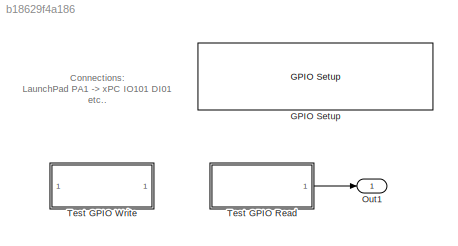
MODEL slx_b18629f4a186
KIND model
BLOCK [Reference] GPIO Setup  REF=stellaris_lib/GPIO/GPIO Setup
  GPIO_PORTX_BASE = GPIO_PORTA_BASE
  PinsOutput_0 = Input
  PinsOutput_1 = Input
  PinsOutput_2 = Output
  PinsOutput_3 = Output
  PinsOutput_4 = Output
  PinsOutput_5 = Input
  PinsOutput_6 = Input
  PinsOutput_7 = Input
  Ports = []
  SourceBlock = stellaris_lib/GPIO/GPIO Setup
  SourceType = GPIO Setup
BLOCK [Outport] Out1
  IconDisplay = Port number
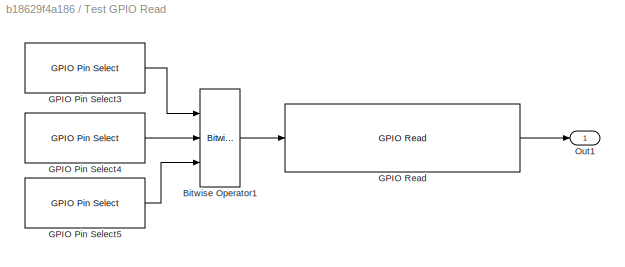
BLOCK [SubSystem] Test GPIO Read
  AttributesFormatString = Priority: %<Priority>
  FunctionWithSeparateData = off
  MaskHideContents = off
  MinAlgLoopOccurrences = off
  Opaque = off
  Ports = [0, 1]
  Priority = 2
  PropExecContextOutsideSubsystem = off
  RTWSystemCode = Auto
  RequestExecContextInheritance = off
  TreatAsAtomicUnit = on
BLOCK [Reference] Test GPIO Read/Bitwise Operator1  REF=simulink/Logic and Bit
Operations/Bitwise
Operator
  BitMask = bin2dec('11011001')
  BitMaskRealWorld = Stored Integer
  NumInputPorts = 3
  Ports = [3, 1]
  SourceBlock = simulink/Logic and Bit\nOperations/Bitwise\nOperator
  SourceType = Bitwise Operator
  UseBitMask = off
  logicop = OR
BLOCK [Reference] Test GPIO Read/GPIO Pin Select3  REF=stellaris_lib/GPIO/GPIO Pin Select
  GPIO_PIN_X = GPIO_PIN_2
  Ports = [0, 1]
  SourceBlock = stellaris_lib/GPIO/GPIO Pin Select
  SourceType = GPIO pin selector
BLOCK [Reference] Test GPIO Read/GPIO Pin Select4  REF=stellaris_lib/GPIO/GPIO Pin Select
  GPIO_PIN_X = GPIO_PIN_3
  Ports = [0, 1]
  SourceBlock = stellaris_lib/GPIO/GPIO Pin Select
  SourceType = GPIO pin selector
BLOCK [Reference] Test GPIO Read/GPIO Pin Select5  REF=stellaris_lib/GPIO/GPIO Pin Select
  GPIO_PIN_X = GPIO_PIN_4
  Ports = [0, 1]
  SourceBlock = stellaris_lib/GPIO/GPIO Pin Select
  SourceType = GPIO pin selector
BLOCK [Reference] Test GPIO Read/GPIO Read  REF=stellaris_lib/GPIO/GPIO Read
  GPIO_PORTX_BASE = GPIO_PORTA_BASE
  Ports = [1, 1]
  SourceBlock = stellaris_lib/GPIO/GPIO Read
  SourceType = GPIO Read
BLOCK [Outport] Test GPIO Read/Out1
  IconDisplay = Port number
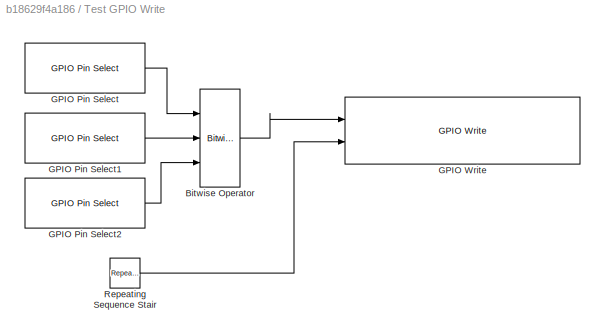
BLOCK [SubSystem] Test GPIO Write
  AttributesFormatString = Priority: %<Priority>
  FunctionWithSeparateData = off
  MaskHideContents = off
  MinAlgLoopOccurrences = off
  Opaque = off
  Ports = []
  Priority = 1
  PropExecContextOutsideSubsystem = off
  RTWSystemCode = Auto
  RequestExecContextInheritance = off
  TreatAsAtomicUnit = on
BLOCK [Reference] Test GPIO Write/Bitwise Operator  REF=simulink/Logic and Bit
Operations/Bitwise
Operator
  BitMask = bin2dec('11011001')
  BitMaskRealWorld = Stored Integer
  NumInputPorts = 3
  Ports = [3, 1]
  SourceBlock = simulink/Logic and Bit\nOperations/Bitwise\nOperator
  SourceType = Bitwise Operator
  UseBitMask = off
  logicop = OR
BLOCK [Reference] Test GPIO Write/GPIO Pin Select  REF=stellaris_lib/GPIO/GPIO Pin Select
  GPIO_PIN_X = GPIO_PIN_2
  Ports = [0, 1]
  SourceBlock = stellaris_lib/GPIO/GPIO Pin Select
  SourceType = GPIO pin selector
BLOCK [Reference] Test GPIO Write/GPIO Pin Select1  REF=stellaris_lib/GPIO/GPIO Pin Select
  GPIO_PIN_X = GPIO_PIN_3
  Ports = [0, 1]
  SourceBlock = stellaris_lib/GPIO/GPIO Pin Select
  SourceType = GPIO pin selector
BLOCK [Reference] Test GPIO Write/GPIO Pin Select2  REF=stellaris_lib/GPIO/GPIO Pin Select
  GPIO_PIN_X = GPIO_PIN_4
  Ports = [0, 1]
  SourceBlock = stellaris_lib/GPIO/GPIO Pin Select
  SourceType = GPIO pin selector
BLOCK [Reference] Test GPIO Write/GPIO Write  REF=stellaris_lib/GPIO/GPIO Write
  GPIO_PORTX_BASE = GPIO_PORTA_BASE
  Ports = [2]
  SourceBlock = stellaris_lib/GPIO/GPIO Write
  SourceType = GPIO Write
BLOCK [Reference] Test GPIO Write/Repeating Sequence Stair  REF=simulink/Sources/Repeating
Sequence
Stair
  ConRadixGroup = Best Precision: Vector-wise
  LockScale = off
  OutDataType = fixdt(0,8)
  OutDataTypeStr = uint8
  OutMax = []
  OutMin = []
  OutScaling = 2^-12
  OutValues = [0 4 8 16].'
  OutputDataTypeScalingMode = uint8
  Ports = [0, 1]
  SourceBlock = simulink/Sources/Repeating\nSequence\nStair
  SourceType = Repeating Sequence Stair
  tsamp = 0.05
ANNOTATION (root): Connections: LaunchPad PA1 -> xPC IO101 DI01 etc..
LINE Test GPIO Read/Bitwise Operator1:1 -> Test GPIO Read/GPIO Read:1
LINE Test GPIO Read/GPIO Pin Select3:1 -> Test GPIO Read/Bitwise Operator1:1
LINE Test GPIO Read/GPIO Pin Select4:1 -> Test GPIO Read/Bitwise Operator1:2
LINE Test GPIO Read/GPIO Pin Select5:1 -> Test GPIO Read/Bitwise Operator1:3
LINE Test GPIO Read/GPIO Read:1 -> Test GPIO Read/Out1:1
LINE Test GPIO Read:1 -> Out1:1
LINE Test GPIO Write/Bitwise Operator:1 -> Test GPIO Write/GPIO Write:1
LINE Test GPIO Write/GPIO Pin Select1:1 -> Test GPIO Write/Bitwise Operator:2
LINE Test GPIO Write/GPIO Pin Select2:1 -> Test GPIO Write/Bitwise Operator:3
LINE Test GPIO Write/GPIO Pin Select:1 -> Test GPIO Write/Bitwise Operator:1
LINE Test GPIO Write/Repeating Sequence Stair:1 -> Test GPIO Write/GPIO Write:2
